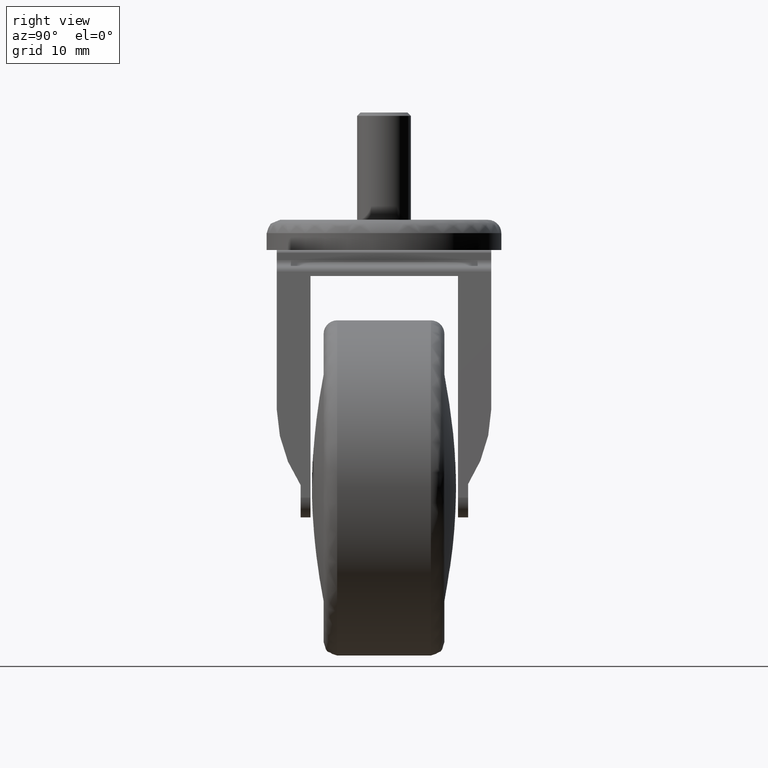
[diagram: clean part render]
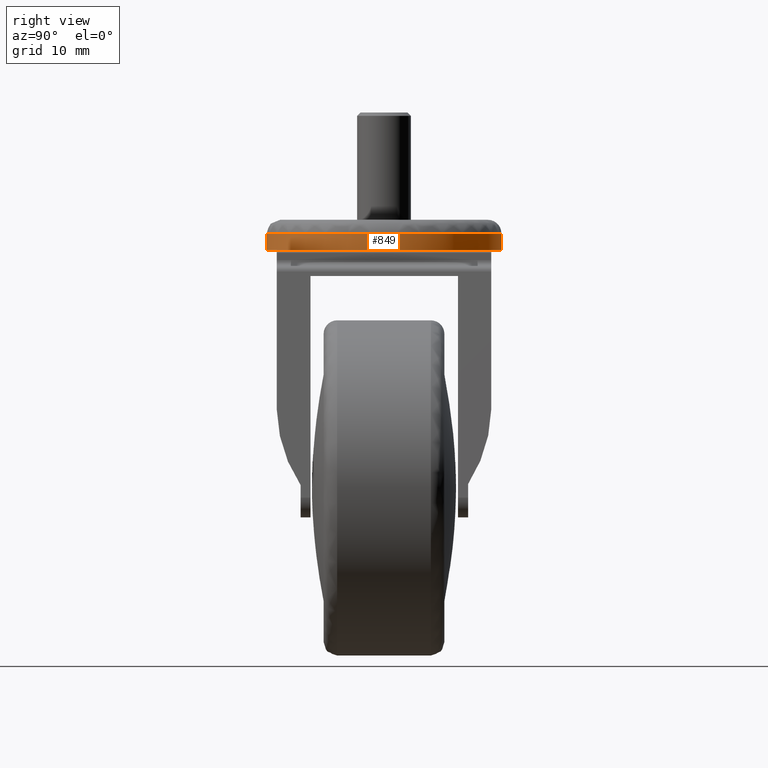
[diagram: same view with one face highlighted and labeled with its STEP entity id]
A machine part, right view. The second image highlights one B-rep face of the part: STEP entity #849.
In plain terms, the highlighted cylindrical surface (bore or boss wall) has radius 17.5 mm, axis along (0, 0, 1).
Its self-contained STEP definition (entity closure, byte-faithful):
#799=CARTESIAN_POINT('',(0.0,-2.755452E-016,-4.499994252981194));
#800=DIRECTION('',(0.0,6.123234E-017,1.0));
#801=DIRECTION('',(0.0,1.0,-6.123234E-017));
#802=AXIS2_PLACEMENT_3D('',#799,#800,#801);
#803=CYLINDRICAL_SURFACE('',#802,17.499995637431500);
#804=CARTESIAN_POINT('',(0.0,17.499995637431500,-4.499994252981195));
#805=VERTEX_POINT('',#804);
#806=CARTESIAN_POINT('',(0.0,-17.499995637431500,-4.499994252981193));
#807=VERTEX_POINT('',#806);
#808=CARTESIAN_POINT('',(0.0,-2.755452E-016,-4.499994252981194));
#809=DIRECTION('',(0.0,6.123234E-017,1.0));
#810=DIRECTION('',(0.0,1.0,-6.123234E-017));
#811=AXIS2_PLACEMENT_3D('',#808,#809,#810);
#812=CIRCLE('',#811,17.499995637431500);
#813=EDGE_CURVE('',#805,#807,#812,.T.);
#814=ORIENTED_EDGE('',*,*,#813,.T.);
#815=CARTESIAN_POINT('',(0.0,-2.755452E-016,-4.499994252981194));
#816=DIRECTION('',(0.0,6.123234E-017,1.0));
#817=DIRECTION('',(0.0,1.0,-6.123234E-017));
#818=AXIS2_PLACEMENT_3D('',#815,#816,#817);
#819=CIRCLE('',#818,17.499995637431500);
#820=EDGE_CURVE('',#807,#805,#819,.T.);
#821=ORIENTED_EDGE('',*,*,#820,.T.);
#822=CARTESIAN_POINT('',(0.0,17.499995637431496,-1.999999999992991));
#823=VERTEX_POINT('',#822);
#824=CARTESIAN_POINT('',(0.0,17.499995637431500,-4.499994252981195));
#825=DIRECTION('',(0.0,0.0,1.0));
#826=VECTOR('',#825,2.499994252988204);
#827=LINE('',#824,#826);
#828=EDGE_CURVE('',#805,#823,#827,.T.);
#829=ORIENTED_EDGE('',*,*,#828,.T.);
#830=CARTESIAN_POINT('',(0.0,-17.499995637431496,-1.999999999992990));
#831=VERTEX_POINT('',#830);
#832=CARTESIAN_POINT('',(0.0,-1.224647E-016,-1.999999999992991));
#833=DIRECTION('',(0.0,4.854407E-017,1.0));
#834=DIRECTION('',(0.0,1.0,-4.854407E-017));
#835=AXIS2_PLACEMENT_3D('',#832,#833,#834);
#836=CIRCLE('',#835,17.499995637431496);
#837=EDGE_CURVE('',#831,#823,#836,.T.);
#838=ORIENTED_EDGE('',*,*,#837,.F.);
#839=CARTESIAN_POINT('',(0.0,-1.224647E-016,-1.999999999992991));
#840=DIRECTION('',(0.0,4.854407E-017,1.0));
#841=DIRECTION('',(0.0,1.0,-4.854407E-017));
#842=AXIS2_PLACEMENT_3D('',#839,#840,#841);
#843=CIRCLE('',#842,17.499995637431496);
#844=EDGE_CURVE('',#823,#831,#843,.T.);
#845=ORIENTED_EDGE('',*,*,#844,.F.);
#846=ORIENTED_EDGE('',*,*,#828,.F.);
#847=EDGE_LOOP('',(#814,#821,#829,#838,#845,#846));
#848=FACE_OUTER_BOUND('',#847,.T.);
#849=ADVANCED_FACE('',(#848),#803,.T.);